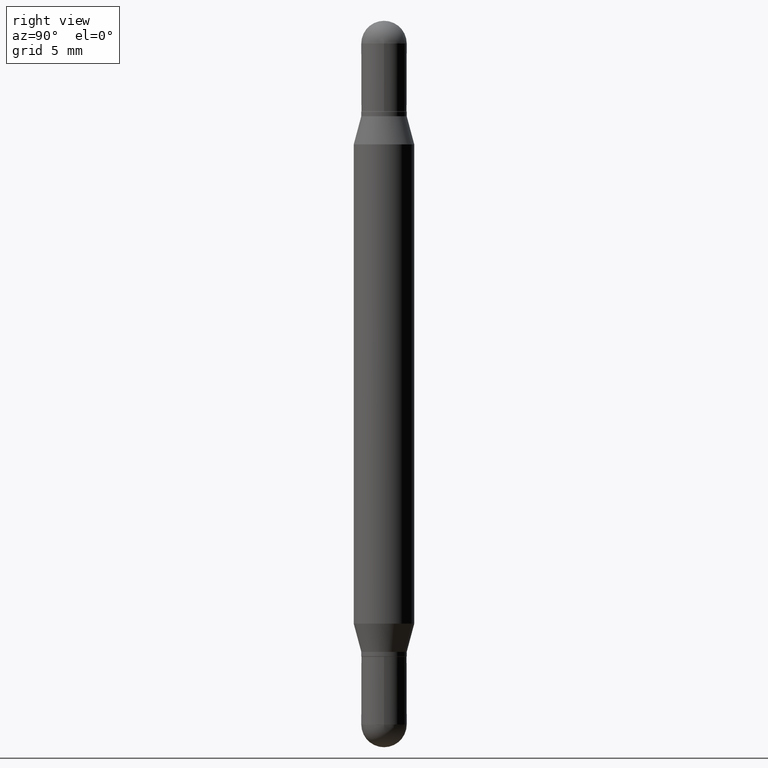
[diagram: clean part render]
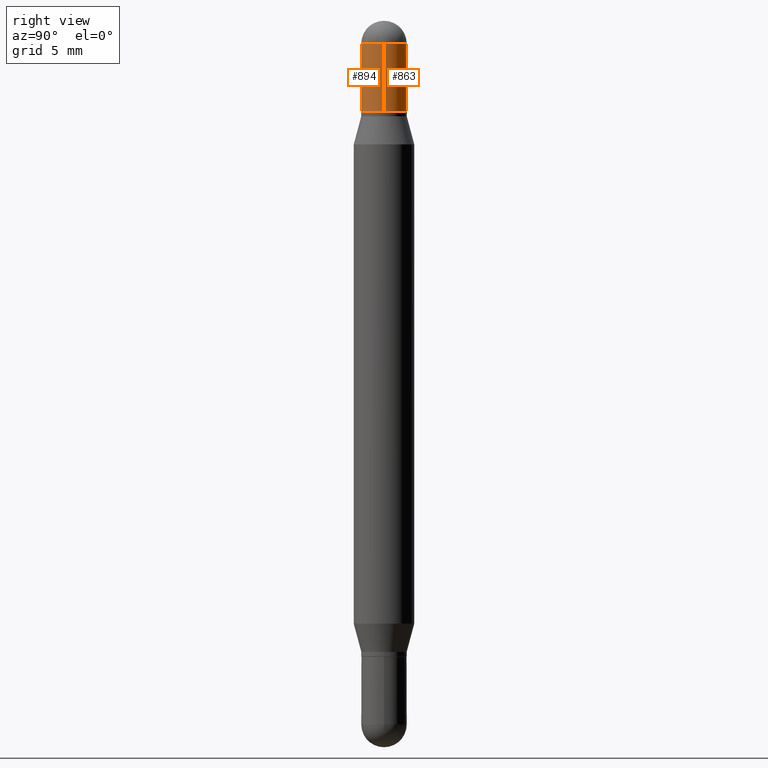
[diagram: same view with one multi-face feature highlighted, each face labeled with its STEP entity id]
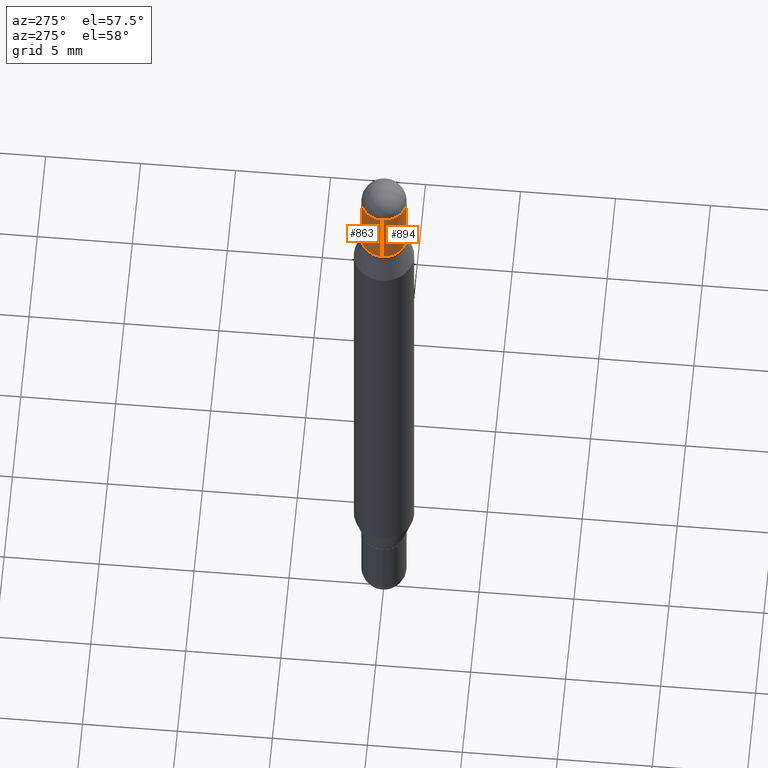
[diagram: same view with one multi-face feature highlighted, each face labeled with its STEP entity id]
A machine part, right view. The highlighted faces form ONE feature: a constant-radius fillet chain: 2 tangent blend faces with common blend radius 1.1913 mm. The faces share edges in the B-rep.
A second angle (auxiliary view) of the same feature is appended — it is thin or edge-on in the first view.
Their STEP definitions:
[1] entity #863 (Cylinder):
#49 = EDGE_CURVE ( 'NONE', #423, #315, #935, .T. ) ;
#72 = DIRECTION ( 'NONE',  ( -2.445468806185136877E-29, -3.479614466977828648E-15, -1.000000000000000000 ) ) ;
#77 = DIRECTION ( 'NONE',  ( 2.445468806185136597E-29, 3.479614466977828254E-15, 1.000000000000000000 ) ) ;
#136 = VERTEX_POINT ( 'NONE', #461 ) ;
#155 = DIRECTION ( 'NONE',  ( -2.445468806185136597E-29, -3.479614466977828254E-15, -1.000000000000000000 ) ) ;
#184 = EDGE_CURVE ( 'NONE', #136, #315, #931, .T. ) ;
#207 = CARTESIAN_POINT ( 'NONE',  ( 3.210900542521084585E-29, -6.595880592238396464E-16, -0.1869999999999993889 ) ) ;
#244 = CARTESIAN_POINT ( 'NONE',  ( 3.275009495835214505E-16, 0.04689999999999983071, -0.04689999999999987235 ) ) ;
#287 = VECTOR ( 'NONE', #919, 39.37007874015748143 ) ;
#315 = VERTEX_POINT ( 'NONE', #432 ) ;
#340 = ORIENTED_EDGE ( 'NONE', *, *, #184, .F. ) ;
#389 = DIRECTION ( 'NONE',  ( 1.000000000000000000, -6.982962677686266711E-15, 0.000000000000000000 ) ) ;
#393 = EDGE_CURVE ( 'NONE', #705, #136, #769, .T. ) ;
#423 = VERTEX_POINT ( 'NONE', #1039 ) ;
#432 = CARTESIAN_POINT ( 'NONE',  ( -0.04689999999999999725, -9.408370971655867998E-17, -0.1869999999999993889 ) ) ;
#461 = CARTESIAN_POINT ( 'NONE',  ( -0.04689999999999999725, -9.408370971655837183E-17, -0.04689999999999971275 ) ) ;
#462 = AXIS2_PLACEMENT_3D ( 'NONE', #1019, #77, #776 ) ;
#491 = ORIENTED_EDGE ( 'NONE', *, *, #393, .F. ) ;
#513 = CARTESIAN_POINT ( 'NONE',  ( 3.553510722267622201E-29, -1.720940724002473634E-16, -0.04689999999999971275 ) ) ;
#516 = AXIS2_PLACEMENT_3D ( 'NONE', #513, #1045, #947 ) ;
#536 = AXIS2_PLACEMENT_3D ( 'NONE', #207, #718, #389 ) ;
#537 = ORIENTED_EDGE ( 'NONE', *, *, #905, .F. ) ;
#549 = AXIS2_PLACEMENT_3D ( 'NONE', #924, #155, #758 ) ;
#563 = FACE_OUTER_BOUND ( 'NONE', #1020, .T. ) ;
#583 = CYLINDRICAL_SURFACE ( 'NONE', #549, 0.04689999999999999725 ) ;
#618 = CARTESIAN_POINT ( 'NONE',  ( 0.04689999999999999725, -7.433420153955291361E-16, -0.04689999999999971275 ) ) ;
#658 = LINE ( 'NONE', #844, #951 ) ;
#705 = VERTEX_POINT ( 'NONE', #244 ) ;
#718 = DIRECTION ( 'NONE',  ( 2.445468806185136597E-29, 3.479614466977828254E-15, 1.000000000000000000 ) ) ;
#745 = EDGE_CURVE ( 'NONE', #1071, #423, #658, .T. ) ;
#751 = CARTESIAN_POINT ( 'NONE',  ( -0.04689999999999999725, -4.906564498270243962E-15, -1.499999999999999556 ) ) ;
#758 = DIRECTION ( 'NONE',  ( 1.000000000000000000, -6.982962677686256455E-15, 0.000000000000000000 ) ) ;
#769 = CIRCLE ( 'NONE', #516, 0.04689999999999999725 ) ;
#776 = DIRECTION ( 'NONE',  ( 1.000000000000000000, -6.982962677686266711E-15, 0.000000000000000000 ) ) ;
#778 = ORIENTED_EDGE ( 'NONE', *, *, #745, .T. ) ;
#844 = CARTESIAN_POINT ( 'NONE',  ( 0.04689999999999999725, -5.555822803949214308E-15, -1.499999999999999556 ) ) ;
#863 = ADVANCED_FACE ( 'NONE', ( #563 ), #583, .T. ) ;
#905 = EDGE_CURVE ( 'NONE', #1071, #705, #930, .T. ) ;
#919 = DIRECTION ( 'NONE',  ( -2.445468806185136877E-29, -3.479614466977828648E-15, -1.000000000000000000 ) ) ;
#924 = CARTESIAN_POINT ( 'NONE',  ( 0.000000000000000000, -5.228321854365729194E-15, -1.499999999999999556 ) ) ;
#930 = CIRCLE ( 'NONE', #462, 0.04689999999999999725 ) ;
#931 = LINE ( 'NONE', #751, #287 ) ;
#935 = CIRCLE ( 'NONE', #536, 0.04689999999999999725 ) ;
#947 = DIRECTION ( 'NONE',  ( 1.000000000000000000, -6.982962677686266711E-15, 0.000000000000000000 ) ) ;
#951 = VECTOR ( 'NONE', #72, 39.37007874015748143 ) ;
#1019 = CARTESIAN_POINT ( 'NONE',  ( 3.553510722267622201E-29, -1.720940724002473634E-16, -0.04689999999999971275 ) ) ;
#1020 = EDGE_LOOP ( 'NONE', ( #340, #491, #537, #778, #1117 ) ) ;
#1039 = CARTESIAN_POINT ( 'NONE',  ( 0.04689999999999999725, -9.870890088073255488E-16, -0.1869999999999993889 ) ) ;
#1045 = DIRECTION ( 'NONE',  ( 2.445468806185136597E-29, 3.479614466977828254E-15, 1.000000000000000000 ) ) ;
#1071 = VERTEX_POINT ( 'NONE', #618 ) ;
#1117 = ORIENTED_EDGE ( 'NONE', *, *, #49, .T. ) ;
[2] entity #894 (Cylinder):
#72 = DIRECTION ( 'NONE',  ( -2.445468806185136877E-29, -3.479614466977828648E-15, -1.000000000000000000 ) ) ;
#83 = DIRECTION ( 'NONE',  ( 1.000000000000000000, -6.982962677686256455E-15, 0.000000000000000000 ) ) ;
#112 = EDGE_CURVE ( 'NONE', #639, #1071, #1076, .T. ) ;
#136 = VERTEX_POINT ( 'NONE', #461 ) ;
#137 = DIRECTION ( 'NONE',  ( 1.000000000000000000, -6.982962677686266711E-15, 0.000000000000000000 ) ) ;
#148 = CARTESIAN_POINT ( 'NONE',  ( -3.217573560954492892E-16, -0.04690000000000017072, -0.04689999999999954622 ) ) ;
#184 = EDGE_CURVE ( 'NONE', #136, #315, #931, .T. ) ;
#256 = CYLINDRICAL_SURFACE ( 'NONE', #443, 0.04689999999999999725 ) ;
#261 = FACE_OUTER_BOUND ( 'NONE', #350, .T. ) ;
#277 = ORIENTED_EDGE ( 'NONE', *, *, #494, .T. ) ;
#287 = VECTOR ( 'NONE', #919, 39.37007874015748143 ) ;
#315 = VERTEX_POINT ( 'NONE', #432 ) ;
#350 = EDGE_LOOP ( 'NONE', ( #724, #564, #277, #408, #936 ) ) ;
#364 = DIRECTION ( 'NONE',  ( 1.000000000000000000, -6.982962677686266711E-15, 0.000000000000000000 ) ) ;
#408 = ORIENTED_EDGE ( 'NONE', *, *, #745, .F. ) ;
#423 = VERTEX_POINT ( 'NONE', #1039 ) ;
#432 = CARTESIAN_POINT ( 'NONE',  ( -0.04689999999999999725, -9.408370971655867998E-17, -0.1869999999999993889 ) ) ;
#443 = AXIS2_PLACEMENT_3D ( 'NONE', #509, #610, #83 ) ;
#461 = CARTESIAN_POINT ( 'NONE',  ( -0.04689999999999999725, -9.408370971655837183E-17, -0.04689999999999971275 ) ) ;
#469 = CARTESIAN_POINT ( 'NONE',  ( 3.553510722267622201E-29, -1.720940724002473634E-16, -0.04689999999999971275 ) ) ;
#494 = EDGE_CURVE ( 'NONE', #315, #423, #1041, .T. ) ;
#509 = CARTESIAN_POINT ( 'NONE',  ( 0.000000000000000000, -5.228321854365729194E-15, -1.499999999999999556 ) ) ;
#547 = DIRECTION ( 'NONE',  ( 2.445468806185136597E-29, 3.479614466977828254E-15, 1.000000000000000000 ) ) ;
#564 = ORIENTED_EDGE ( 'NONE', *, *, #184, .T. ) ;
#593 = AXIS2_PLACEMENT_3D ( 'NONE', #940, #1037, #605 ) ;
#605 = DIRECTION ( 'NONE',  ( 1.000000000000000000, -6.982962677686266711E-15, 0.000000000000000000 ) ) ;
#610 = DIRECTION ( 'NONE',  ( -2.445468806185136597E-29, -3.479614466977828254E-15, -1.000000000000000000 ) ) ;
#618 = CARTESIAN_POINT ( 'NONE',  ( 0.04689999999999999725, -7.433420153955291361E-16, -0.04689999999999971275 ) ) ;
#639 = VERTEX_POINT ( 'NONE', #148 ) ;
#658 = LINE ( 'NONE', #844, #951 ) ;
#724 = ORIENTED_EDGE ( 'NONE', *, *, #978, .F. ) ;
#730 = CARTESIAN_POINT ( 'NONE',  ( 3.210900542521084585E-29, -6.595880592238396464E-16, -0.1869999999999993889 ) ) ;
#745 = EDGE_CURVE ( 'NONE', #1071, #423, #658, .T. ) ;
#751 = CARTESIAN_POINT ( 'NONE',  ( -0.04689999999999999725, -4.906564498270243962E-15, -1.499999999999999556 ) ) ;
#774 = AXIS2_PLACEMENT_3D ( 'NONE', #469, #817, #137 ) ;
#817 = DIRECTION ( 'NONE',  ( 2.445468806185136597E-29, 3.479614466977828254E-15, 1.000000000000000000 ) ) ;
#844 = CARTESIAN_POINT ( 'NONE',  ( 0.04689999999999999725, -5.555822803949214308E-15, -1.499999999999999556 ) ) ;
#858 = AXIS2_PLACEMENT_3D ( 'NONE', #730, #547, #364 ) ;
#894 = ADVANCED_FACE ( 'NONE', ( #261 ), #256, .T. ) ;
#919 = DIRECTION ( 'NONE',  ( -2.445468806185136877E-29, -3.479614466977828648E-15, -1.000000000000000000 ) ) ;
#931 = LINE ( 'NONE', #751, #287 ) ;
#936 = ORIENTED_EDGE ( 'NONE', *, *, #112, .F. ) ;
#940 = CARTESIAN_POINT ( 'NONE',  ( 3.553510722267622201E-29, -1.720940724002473634E-16, -0.04689999999999971275 ) ) ;
#951 = VECTOR ( 'NONE', #72, 39.37007874015748143 ) ;
#978 = EDGE_CURVE ( 'NONE', #136, #639, #1026, .T. ) ;
#1026 = CIRCLE ( 'NONE', #593, 0.04689999999999999725 ) ;
#1037 = DIRECTION ( 'NONE',  ( 2.445468806185136597E-29, 3.479614466977828254E-15, 1.000000000000000000 ) ) ;
#1039 = CARTESIAN_POINT ( 'NONE',  ( 0.04689999999999999725, -9.870890088073255488E-16, -0.1869999999999993889 ) ) ;
#1041 = CIRCLE ( 'NONE', #858, 0.04689999999999999725 ) ;
#1071 = VERTEX_POINT ( 'NONE', #618 ) ;
#1076 = CIRCLE ( 'NONE', #774, 0.04689999999999999725 ) ;